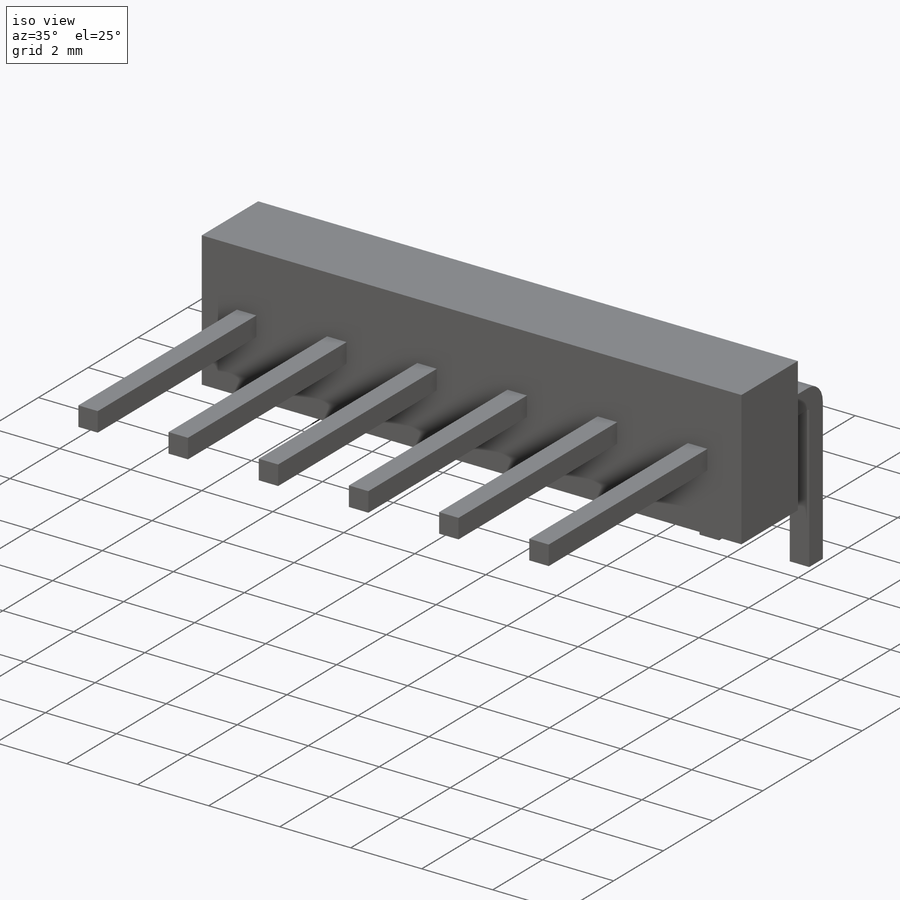
[diagram: iso view]
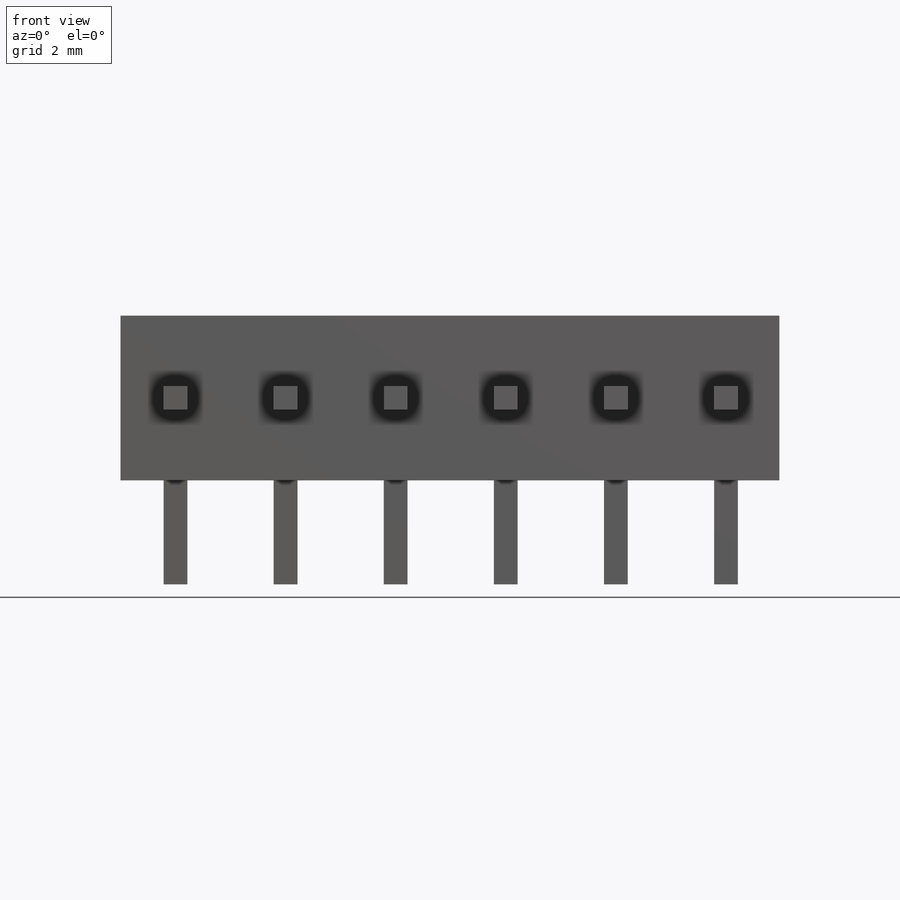
[diagram: front view]
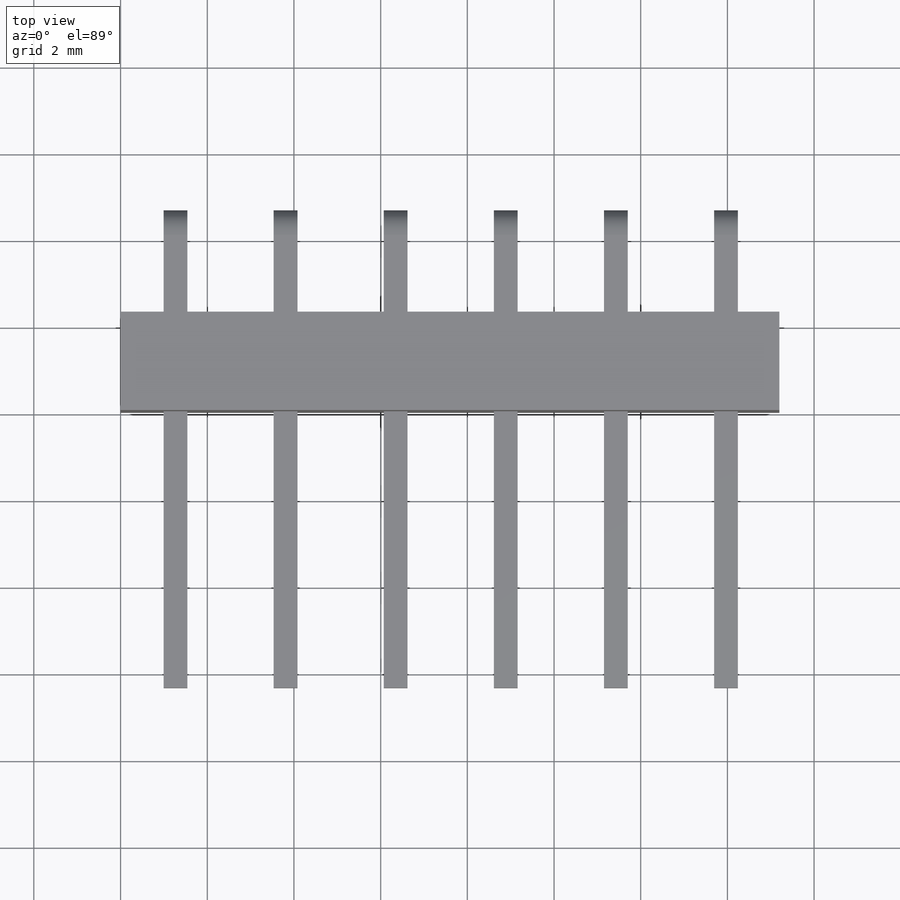
[diagram: top view]
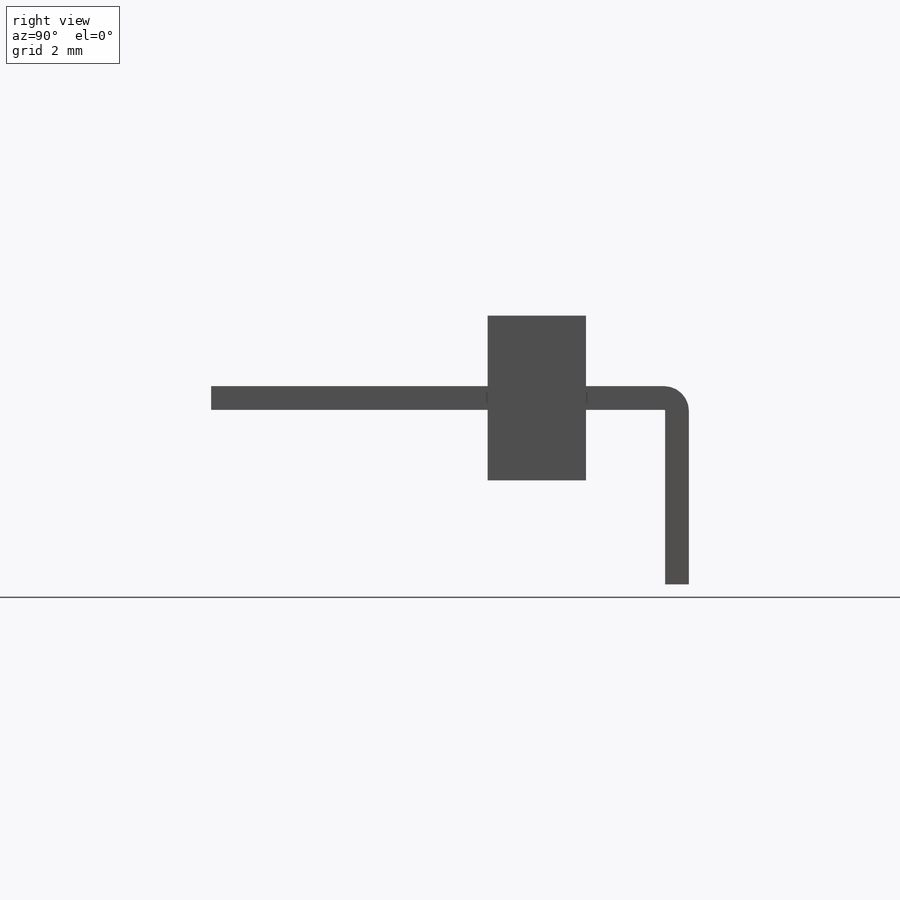
[diagram: right view]
SOLIDWORKS PART (.sldprt)
format: sldprt  version: not decoded by parser v0  size: 205,824 bytes
history: native  units: mm
features: sketch x4, extrude x2, plane x2, material x1, sweep x1 (+12 scaffold rows collapsed)
feature tree (22):
  scaffold x12  (default folders/planes/origin — collapsed)
  material  "Material <not specified>"
  sketch  "Sketch1"  dims[D1=~26.442787mm D2=~87.976316mm]
  extrude  "Boss-Extrude1"  Depth=3.8mm
  sketch  "Sketch2"  dims[c1.D1=~1.10947mm c1.D2=~1.107091mm c2.D1=~0.622751mm c3.D1=6.0]
  sketch  "Sketch3"  dims[D1=4.0mm]
  sweep  "Sweep1"
  extrude  "Boss-Extrude2"  [1 undecoded]
  sketch  "Sketch2<2>"  dims[D1=8.65mm]
  plane  "Plane1"
  plane  "Plane2"
decode coverage: 5 of 7 modeling features carry decoded parameters
note: ~ marks probable driven/reference dimensions
note: 1 parameter value undecoded
note: suppression state not decoded; provenance and decode notes live in map.json
